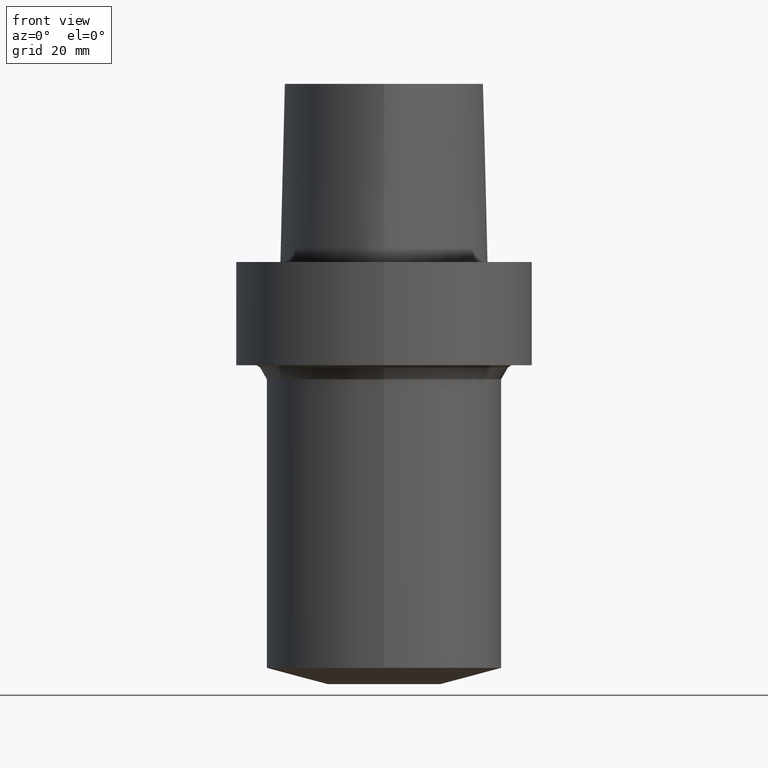
[diagram: clean part render]
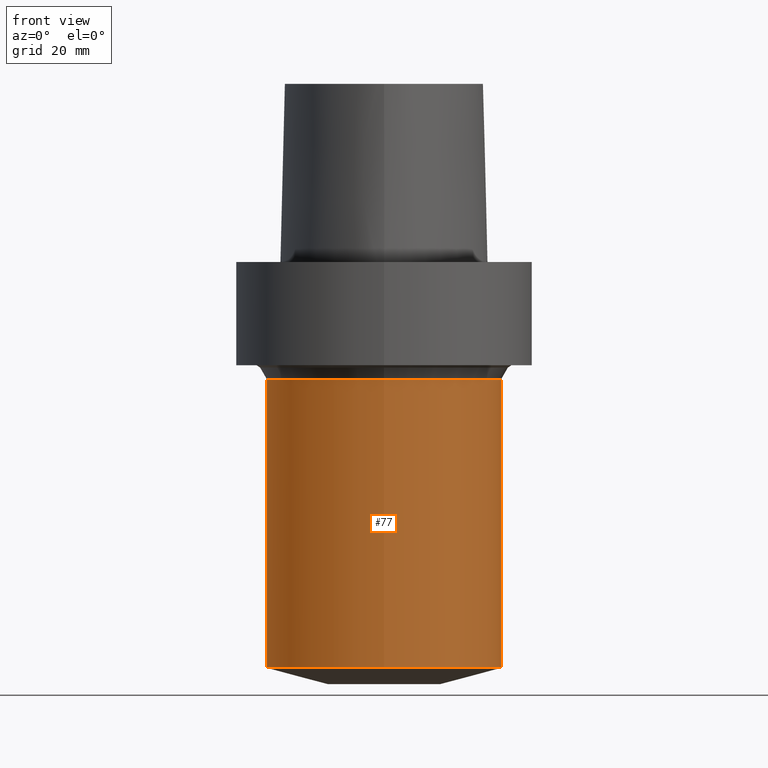
[diagram: same view with one face highlighted and labeled with its STEP entity id]
A machine part, front view. The second image highlights one B-rep face of the part: STEP entity #77.
In plain terms, the highlighted cylindrical surface (bore or boss wall) has radius 25 mm, axis along (-0, -0, 1).
Its self-contained STEP definition (entity closure, byte-faithful):
#77=ADVANCED_FACE('',(#94,#95),#96,.T.);
#94=FACE_BOUND('',#125,.T.);
#95=FACE_BOUND('',#126,.T.);
#96=CYLINDRICAL_SURFACE('',#127,25.0);
#125=EDGE_LOOP('',(#300));
#126=EDGE_LOOP('',(#301));
#127=AXIS2_PLACEMENT_3D('',#302,#303,#304);
#300=ORIENTED_EDGE('',*,*,#354,.T.);
#301=ORIENTED_EDGE('',*,*,#352,.F.);
#302=CARTESIAN_POINT('',(3.414213E-015,6.828426E-015,-55.7583302544969));
#303=DIRECTION('',(-0.0,-0.0,1.0));
#304=DIRECTION('',(0.0,1.0,0.0));
#352=EDGE_CURVE('',#371,#371,#372,.T.);
#354=EDGE_CURVE('',#375,#375,#376,.T.);
#371=VERTEX_POINT('',#458);
#372=CIRCLE('',#459,25.0);
#375=VERTEX_POINT('',#462);
#376=CIRCLE('',#463,25.0);
#458=CARTESIAN_POINT('',(3.526971E-016,-25.0,-86.516660503921));
#459=AXIS2_PLACEMENT_3D('',#516,#517,#518);
#462=CARTESIAN_POINT('',(-1.607248E-015,-25.0,-25.0000000050727));
#463=AXIS2_PLACEMENT_3D('',#522,#523,#524);
#516=CARTESIAN_POINT('',(5.297618E-015,1.059524E-014,-86.516660503921));
#517=DIRECTION('',(0.0,0.0,-1.0));
#518=DIRECTION('',(0.0,1.0,0.0));
#522=CARTESIAN_POINT('',(1.530808E-015,3.061617E-015,-25.0000000050727));
#523=DIRECTION('',(0.0,0.0,-1.0));
#524=DIRECTION('',(0.0,1.0,0.0));